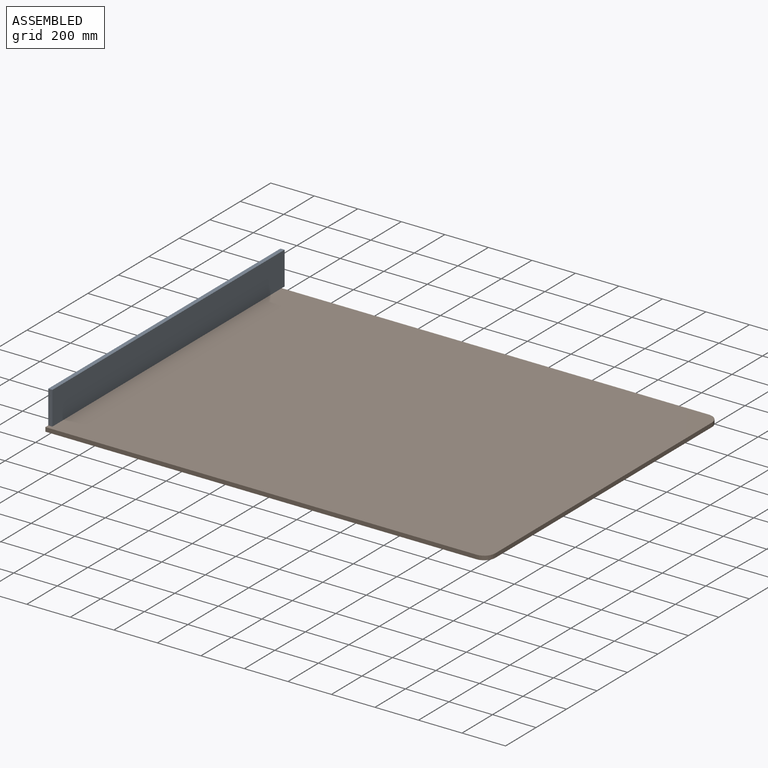
[diagram: assembled view]
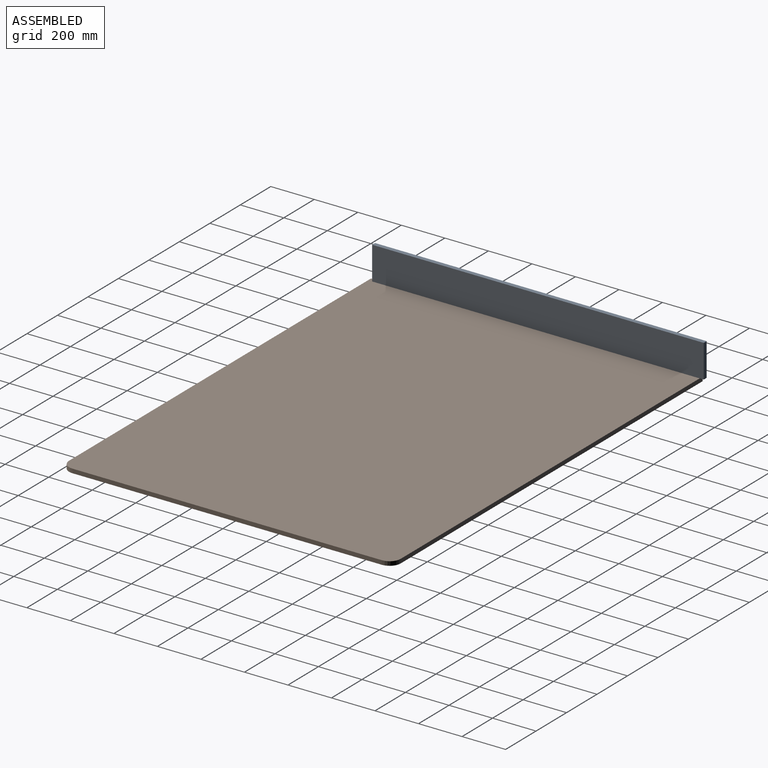
[diagram: assembled view, second angle]
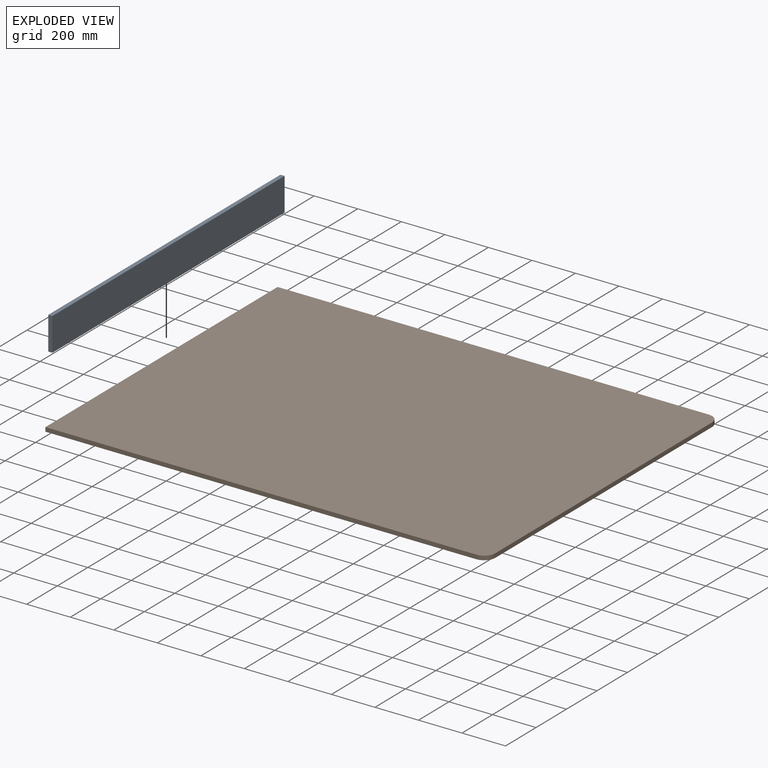
[diagram: exploded view]
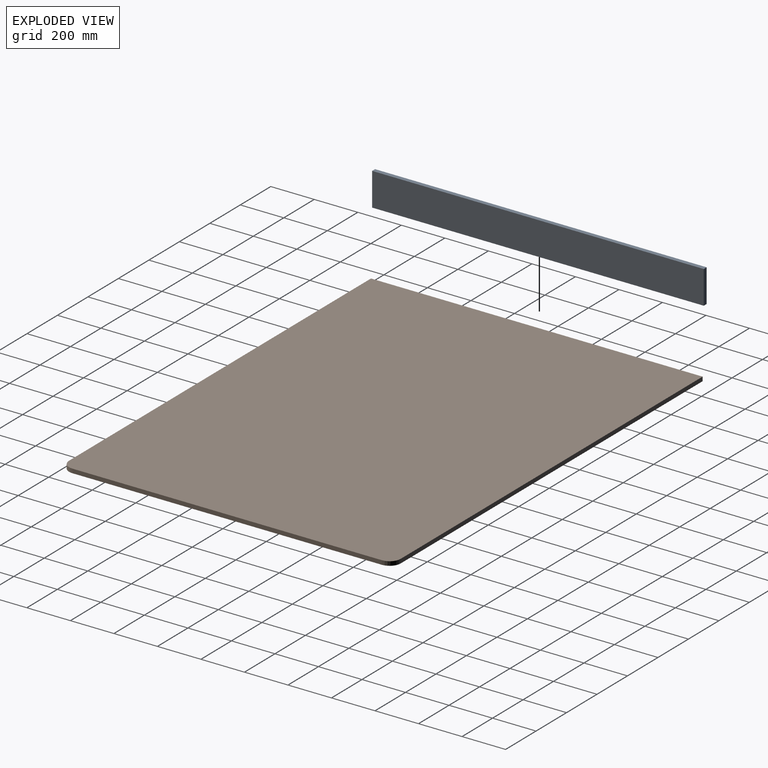
[diagram: exploded view, second angle]
ASSEMBLY  parts=2 mates=2
PART A: 6 faces, bbox 19.1x1524x152.4 mm
  f0: plane 152.4x19.05mm, normal (0,-1,0), area 2903.2mm2, adj f1,f3,f4,f5
  f1: plane 1524x19.05mm, normal (0,0,-1), area 29032.2mm2, adj f0,f2,f4,f5
  f2: plane 152.4x19.05mm, normal (0,1,0), area 2903.2mm2, adj f1,f3,f4,f5
  f3: plane 1524x19.05mm, normal (0,0,1), area 29032.2mm2, adj f0,f2,f4,f5
  f4: plane 1524x152.4mm, normal (1,0,0), area 232257.6mm2, adj f0,f1,f2,f3
  f5: plane 1524x152.4mm, normal (-1,0,0), area 232257.6mm2, adj f0,f1,f2,f3
PART B: 8 faces, bbox 2032x1524x19.1 mm
  f0: plane 1524x19.05mm, normal (-1,0,0), area 29032.2mm2, adj f1,f3,f4,f5
  f1: plane 1981.2x19.05mm, normal (0,-1,0), area 37741.9mm2, adj f0,f4,f5,f6
  f2: plane 1422.4x19.05mm, normal (1,0,0), area 27096.7mm2, adj f4,f5,f6,f7
  f3: plane 1981.2x19.05mm, normal (0,1,0), area 37741.9mm2, adj f0,f4,f5,f7
  f4: plane 2032x1524mm, normal (0,0,1), area 3095660.4mm2, adj f0,f1,f2,f3,f6,f7
  f5: plane 2032x1524mm, normal (0,0,-1), area 3095660.4mm2, adj f0,f1,f2,f3,f6,f7
  f6: cylinder r=50.8mm len=50.8mm, axis (0,0,-1), area 1520.1mm2, adj f1,f2,f4,f5
  f7: cylinder r=50.8mm len=50.8mm, axis (0,0,1), area 1520.1mm2, adj f2,f3,f4,f5
PLACE A t=(-219.77,25.74,311.65)mm
PLACE B t=(-219.77,7.05,292.6)mm
MATE planar B.f4 <-> A.f1  axis (0,0,1) through (-219.77,769.05,311.65)mm
MATE planar A.f5 <-> B.f0  axis (-1,0,0) through (-219.77,787.74,387.85)mm
